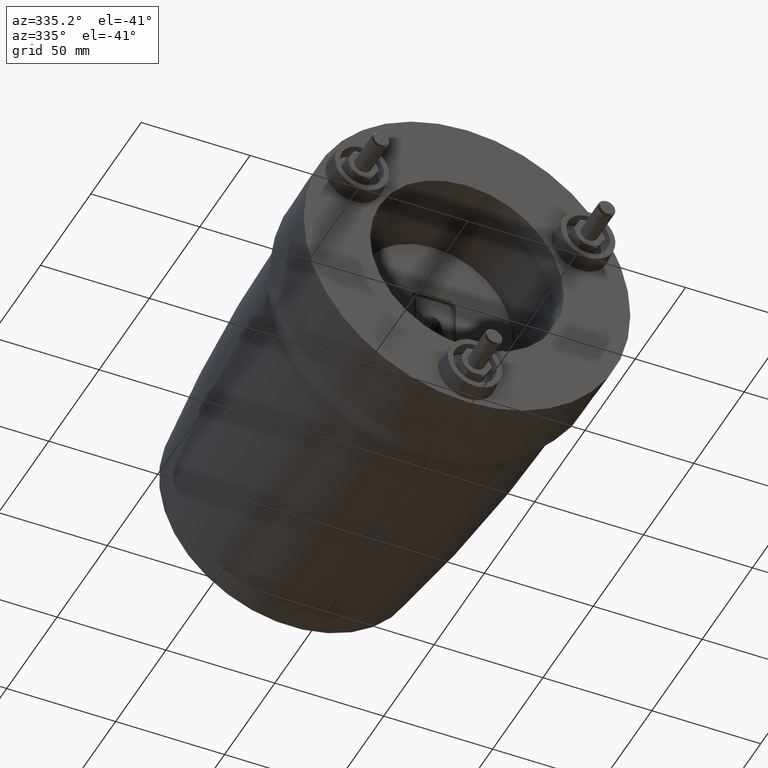
[diagram: clean part render]
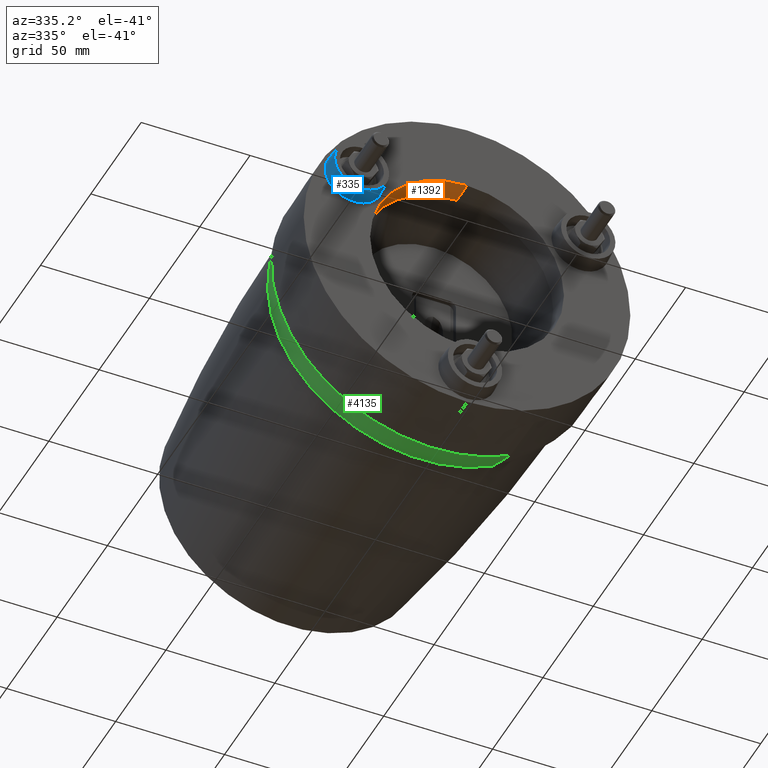
[diagram: same view with three faces highlighted in distinct colors, each labeled with its STEP entity id]
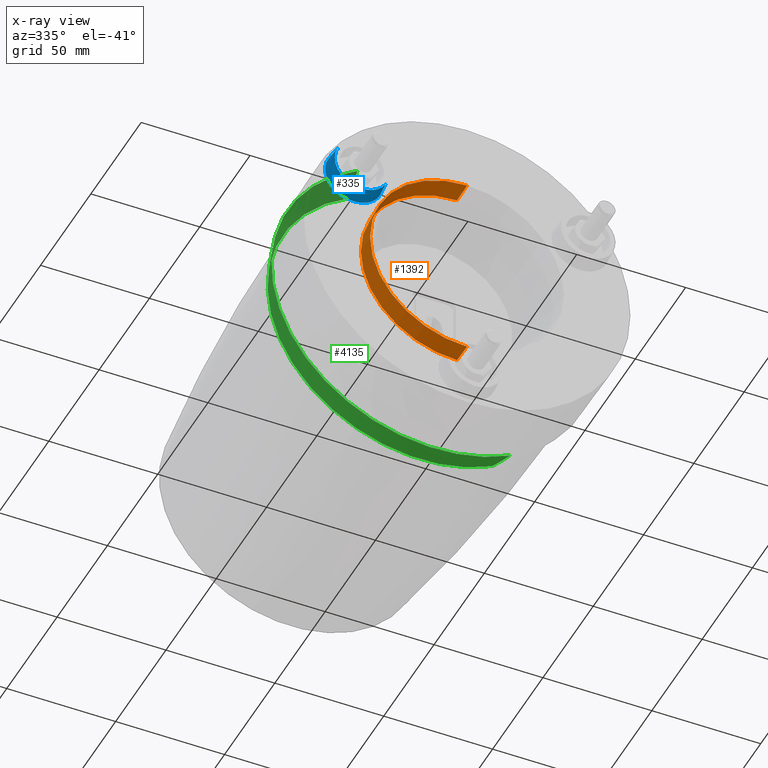
[diagram: x-ray of the same camera — body ghosted, the three highlighted faces saturated]
A machine part, auxiliary view with three faces highlighted in distinct colors.
The next image is the same camera in x-ray (body ghosted, the three faces saturated) — at least one of them is partly hidden behind the body in this view.
Their STEP definitions:

[orange] entity #1392 — the highlighted conical surface has half-angle 2 deg.
#219 = ORIENTED_EDGE ( 'NONE', *, *, #4466, .T. ) ;
#363 = FACE_OUTER_BOUND ( 'NONE', #492, .T. ) ;
#393 = CIRCLE ( 'NONE', #1015, 44.17000643500000479 ) ;
#492 = EDGE_LOOP ( 'NONE', ( #1029, #1118, #746, #219 ) ) ;
#600 = CARTESIAN_POINT ( 'NONE',  ( -3.108650705590759055E-13, 9.000000000000000000, 44.51764743816125502 ) ) ;
#664 = DIRECTION ( 'NONE',  ( 0.000000000000000000, -1.000000000000000000, 0.000000000000000000 ) ) ;
#686 = VERTEX_POINT ( 'NONE', #774 ) ;
#746 = ORIENTED_EDGE ( 'NONE', *, *, #2722, .T. ) ;
#774 = CARTESIAN_POINT ( 'NONE',  ( 3.042207359119388982E-13, 18.95513580500000117, -44.17000643499999768 ) ) ;
#781 = DIRECTION ( 'NONE',  ( -6.982962677686270655E-15, 0.000000000000000000, 1.000000000000000000 ) ) ;
#892 = DIRECTION ( 'NONE',  ( 2.394279275642955716E-16, -0.9993908270174995945, -0.03489949674820513187 ) ) ;
#954 = CONICAL_SURFACE ( 'NONE', #3658, 44.51533928099999571, 0.03490658508561861328 ) ;
#982 = EDGE_CURVE ( 'NONE', #686, #2831, #393, .T. ) ;
#1015 = AXIS2_PLACEMENT_3D ( 'NONE', #3885, #4273, #1328 ) ;
#1029 = ORIENTED_EDGE ( 'NONE', *, *, #1579, .F. ) ;
#1118 = ORIENTED_EDGE ( 'NONE', *, *, #982, .T. ) ;
#1282 = LINE ( 'NONE', #1986, #3145 ) ;
#1328 = DIRECTION ( 'NONE',  ( 6.982962677686270655E-15, 0.000000000000000000, -1.000000000000000000 ) ) ;
#1392 = ADVANCED_FACE ( 'NONE', ( #363 ), #954, .F. ) ;
#1463 = CIRCLE ( 'NONE', #2931, 44.51764743816124792 ) ;
#1579 = EDGE_CURVE ( 'NONE', #686, #2720, #4582, .T. ) ;
#1632 = CARTESIAN_POINT ( 'NONE',  ( 3.054132311150044224E-13, 9.000000000000000000, -44.51764743816125502 ) ) ;
#1830 = CARTESIAN_POINT ( 'NONE',  ( 0.000000000000000000, 9.066096972999998727, 0.000000000000000000 ) ) ;
#1851 = DIRECTION ( 'NONE',  ( 0.000000000000000000, -1.000000000000000000, 0.000000000000000000 ) ) ;
#1986 = CARTESIAN_POINT ( 'NONE',  ( -3.108489527837645559E-13, 9.066096972999998727, 44.51533928099999571 ) ) ;
#2720 = VERTEX_POINT ( 'NONE', #1632 ) ;
#2722 = EDGE_CURVE ( 'NONE', #2831, #2910, #1282, .T. ) ;
#2831 = VERTEX_POINT ( 'NONE', #3962 ) ;
#2910 = VERTEX_POINT ( 'NONE', #600 ) ;
#2931 = AXIS2_PLACEMENT_3D ( 'NONE', #3980, #664, #4004 ) ;
#3050 = VECTOR ( 'NONE', #892, 1000.000000000000114 ) ;
#3145 = VECTOR ( 'NONE', #4186, 1000.000000000000114 ) ;
#3658 = AXIS2_PLACEMENT_3D ( 'NONE', #1830, #1851, #781 ) ;
#3885 = CARTESIAN_POINT ( 'NONE',  ( 0.000000000000000000, 18.95513580500000117, 0.000000000000000000 ) ) ;
#3962 = CARTESIAN_POINT ( 'NONE',  ( -3.096512884839216798E-13, 18.95513580500000117, 44.17000643499999768 ) ) ;
#3980 = CARTESIAN_POINT ( 'NONE',  ( 0.000000000000000000, 9.000000000000000000, 0.000000000000000000 ) ) ;
#4004 = DIRECTION ( 'NONE',  ( -6.982962677686271444E-15, 0.000000000000000000, 1.000000000000000000 ) ) ;
#4186 = DIRECTION ( 'NONE',  ( -2.437018832627498086E-16, -0.9993908270174995945, 0.03489949674820513187 ) ) ;
#4209 = CARTESIAN_POINT ( 'NONE',  ( 3.053973960074210284E-13, 9.066096972999998727, -44.51533928099999571 ) ) ;
#4273 = DIRECTION ( 'NONE',  ( 0.000000000000000000, 1.000000000000000000, 0.000000000000000000 ) ) ;
#4466 = EDGE_CURVE ( 'NONE', #2910, #2720, #1463, .T. ) ;
#4582 = LINE ( 'NONE', #4209, #3050 ) ;

[blue] entity #335 — the highlighted toroidal blend (fillet) surface has major radius 86.689 mm and minor (blend) radius 100 mm.
#227 = CARTESIAN_POINT ( 'NONE',  ( -51.96152422706679630, 13.70966543281556049, 29.99999999999915090 ) ) ;
#335 = ADVANCED_FACE ( 'NONE', ( #2794 ), #2410, .T. ) ;
#487 = VERTEX_POINT ( 'NONE', #3059 ) ;
#506 = EDGE_LOOP ( 'NONE', ( #925, #605, #4191, #1168 ) ) ;
#559 = DIRECTION ( 'NONE',  ( -0.4999999999999860667, -0.000000000000000000, -0.8660254037844468122 ) ) ;
#605 = ORIENTED_EDGE ( 'NONE', *, *, #3816, .T. ) ;
#672 = DIRECTION ( 'NONE',  ( 0.000000000000000000, -1.000000000000000000, 0.000000000000000000 ) ) ;
#905 = AXIS2_PLACEMENT_3D ( 'NONE', #971, #3253, #2472 ) ;
#925 = ORIENTED_EDGE ( 'NONE', *, *, #2850, .T. ) ;
#971 = CARTESIAN_POINT ( 'NONE',  ( -51.96152422706679630, 1.000000000000000000, 29.99999999999915090 ) ) ;
#1168 = ORIENTED_EDGE ( 'NONE', *, *, #3932, .F. ) ;
#1391 = CIRCLE ( 'NONE', #1549, 100.0000001047823872 ) ;
#1484 = DIRECTION ( 'NONE',  ( 0.4999999999999859557, 0.000000000000000000, 0.8660254037844469233 ) ) ;
#1534 = CARTESIAN_POINT ( 'NONE',  ( 23.11338126973470253, 13.70966543281556049, -13.34451689796328111 ) ) ;
#1549 = AXIS2_PLACEMENT_3D ( 'NONE', #4586, #559, #2745 ) ;
#1684 = CIRCLE ( 'NONE', #4693, 13.19999999891632214 ) ;
#2077 = DIRECTION ( 'NONE',  ( -6.833759148348452042E-15, 0.000000000000000000, 1.000000000000000000 ) ) ;
#2270 = EDGE_CURVE ( 'NONE', #4207, #487, #3232, .T. ) ;
#2410 = TOROIDAL_SURFACE ( 'NONE', #2798, -86.68903379592730118, 100.0000001047824014 ) ;
#2455 = VERTEX_POINT ( 'NONE', #3484 ) ;
#2472 = DIRECTION ( 'NONE',  ( -0.8660254037844467012, 0.000000000000000000, 0.4999999999999860112 ) ) ;
#2480 = CARTESIAN_POINT ( 'NONE',  ( -62.78684177512658238, 1.000000000000000444, 36.25000000043441162 ) ) ;
#2745 = DIRECTION ( 'NONE',  ( -0.8660254037844467012, 0.000000000000000000, 0.4999999999999860667 ) ) ;
#2794 = FACE_OUTER_BOUND ( 'NONE', #506, .T. ) ;
#2798 = AXIS2_PLACEMENT_3D ( 'NONE', #227, #4658, #2822 ) ;
#2822 = DIRECTION ( 'NONE',  ( -0.8660254037844468122, 0.000000000000000000, 0.4999999999999858447 ) ) ;
#2850 = EDGE_CURVE ( 'NONE', #2455, #4411, #1684, .T. ) ;
#3059 = CARTESIAN_POINT ( 'NONE',  ( -41.13620667900699601, 1.000000000000000444, 23.74999999956389729 ) ) ;
#3232 = CIRCLE ( 'NONE', #905, 12.50000000087084473 ) ;
#3253 = DIRECTION ( 'NONE',  ( 0.000000000000000000, -1.000000000000000000, 0.000000000000000000 ) ) ;
#3463 = CIRCLE ( 'NONE', #4164, 100.0000001047824156 ) ;
#3484 = CARTESIAN_POINT ( 'NONE',  ( -63.39305955608301701, 9.000000000000000000, 36.59999999945713967 ) ) ;
#3494 = CARTESIAN_POINT ( 'NONE',  ( -40.52998889805056848, 9.000000000000000000, 23.40000000054117635 ) ) ;
#3816 = EDGE_CURVE ( 'NONE', #4411, #487, #1391, .T. ) ;
#3932 = EDGE_CURVE ( 'NONE', #2455, #4207, #3463, .T. ) ;
#4066 = DIRECTION ( 'NONE',  ( 0.8660254037844467012, 0.000000000000000000, -0.4999999999999858447 ) ) ;
#4164 = AXIS2_PLACEMENT_3D ( 'NONE', #1534, #1484, #4066 ) ;
#4191 = ORIENTED_EDGE ( 'NONE', *, *, #2270, .F. ) ;
#4207 = VERTEX_POINT ( 'NONE', #2480 ) ;
#4411 = VERTEX_POINT ( 'NONE', #3494 ) ;
#4586 = CARTESIAN_POINT ( 'NONE',  ( -127.0364297238682809, 13.70966543281556049, 73.34451689796159712 ) ) ;
#4658 = DIRECTION ( 'NONE',  ( 0.000000000000000000, -1.000000000000000000, 0.000000000000000000 ) ) ;
#4693 = AXIS2_PLACEMENT_3D ( 'NONE', #4719, #672, #2077 ) ;
#4719 = CARTESIAN_POINT ( 'NONE',  ( -51.96152422706679630, 9.000000000000000000, 29.99999999999915090 ) ) ;

[green] entity #4135 — the highlighted toroidal blend (fillet) surface has major radius 212.318 mm and minor (blend) radius 300 mm.
#26 = CARTESIAN_POINT ( 'NONE',  ( -32.95647398094602920, 55.32575010273159677, 61.94328763096225288 ) ) ;
#250 = ORIENTED_EDGE ( 'NONE', *, *, #1412, .T. ) ;
#276 = CARTESIAN_POINT ( 'NONE',  ( 32.95647398094607183, 55.32575010273160387, -61.94328763096225998 ) ) ;
#277 = DIRECTION ( 'NONE',  ( -0.4697009179250243305, -9.303826183378726515E-17, 0.8828256043525185559 ) ) ;
#283 = CIRCLE ( 'NONE', #1691, 300.0000000000000000 ) ;
#472 = CARTESIAN_POINT ( 'NONE',  ( -99.72599162257056093, -45.68625626515981253, 187.4398270558704098 ) ) ;
#793 = EDGE_CURVE ( 'NONE', #1415, #4169, #2796, .T. ) ;
#834 = DIRECTION ( 'NONE',  ( 0.4697009179250239419, 0.000000000000000000, -0.8828256043525186669 ) ) ;
#948 = AXIS2_PLACEMENT_3D ( 'NONE', #2241, #1877, #3344 ) ;
#1035 = EDGE_CURVE ( 'NONE', #3033, #1681, #1110, .T. ) ;
#1110 = CIRCLE ( 'NONE', #2799, 74.58107844172275236 ) ;
#1234 = AXIS2_PLACEMENT_3D ( 'NONE', #1429, #1449, #2122 ) ;
#1263 = CIRCLE ( 'NONE', #948, 300.0000000000000000 ) ;
#1412 = EDGE_CURVE ( 'NONE', #1681, #1415, #1263, .T. ) ;
#1415 = VERTEX_POINT ( 'NONE', #26 ) ;
#1429 = CARTESIAN_POINT ( 'NONE',  ( 1.352387018892753981E-14, -45.68625626515979832, 9.651393083216828307E-15 ) ) ;
#1449 = DIRECTION ( 'NONE',  ( -3.646188862319169167E-17, 1.000000000000000000, 6.853188408020449877E-17 ) ) ;
#1555 = CARTESIAN_POINT ( 'NONE',  ( 1.352387018892753981E-14, 55.32575010273160387, 9.651393083216828307E-15 ) ) ;
#1681 = VERTEX_POINT ( 'NONE', #3168 ) ;
#1691 = AXIS2_PLACEMENT_3D ( 'NONE', #472, #3020, #834 ) ;
#1876 = AXIS2_PLACEMENT_3D ( 'NONE', #1555, #3651, #4061 ) ;
#1877 = DIRECTION ( 'NONE',  ( -0.8828256043525187780, -4.930380657631322689E-32, -0.4697009179250238864 ) ) ;
#2120 = ORIENTED_EDGE ( 'NONE', *, *, #1035, .T. ) ;
#2122 = DIRECTION ( 'NONE',  ( -0.4697009179250238309, -7.762788453611641143E-17, 0.8828256043525187780 ) ) ;
#2208 = ORIENTED_EDGE ( 'NONE', *, *, #3233, .F. ) ;
#2241 = CARTESIAN_POINT ( 'NONE',  ( 99.72599162257056093, -45.68625626515978411, -187.4398270558704382 ) ) ;
#2796 = CIRCLE ( 'NONE', #1876, 70.16480641881085489 ) ;
#2799 = AXIS2_PLACEMENT_3D ( 'NONE', #4643, #3591, #277 ) ;
#2875 = FACE_OUTER_BOUND ( 'NONE', #4317, .T. ) ;
#3020 = DIRECTION ( 'NONE',  ( 0.8828256043525186669, 3.697785493223491743E-32, 0.4697009179250239974 ) ) ;
#3033 = VERTEX_POINT ( 'NONE', #4108 ) ;
#3168 = CARTESIAN_POINT ( 'NONE',  ( -35.03080100391538565, 41.99999999999424460, 65.84208564857654267 ) ) ;
#3184 = ORIENTED_EDGE ( 'NONE', *, *, #793, .T. ) ;
#3233 = EDGE_CURVE ( 'NONE', #3033, #4169, #283, .T. ) ;
#3344 = DIRECTION ( 'NONE',  ( -0.4697009179250238864, 0.000000000000000000, 0.8828256043525188890 ) ) ;
#3591 = DIRECTION ( 'NONE',  ( -4.370015698547859813E-17, 1.000000000000000000, 8.213655973132098191E-17 ) ) ;
#3651 = DIRECTION ( 'NONE',  ( 0.000000000000000000, -1.000000000000000000, 0.000000000000000000 ) ) ;
#4009 = TOROIDAL_SURFACE ( 'NONE', #1234, -212.3180684064350032, 300.0000000000000000 ) ;
#4061 = DIRECTION ( 'NONE',  ( 0.8828256043525186669, 0.000000000000000000, 0.4697009179250242750 ) ) ;
#4108 = CARTESIAN_POINT ( 'NONE',  ( 35.03080100391540697, 41.99999999999425881, -65.84208564857650003 ) ) ;
#4135 = ADVANCED_FACE ( 'NONE', ( #2875 ), #4009, .T. ) ;
#4169 = VERTEX_POINT ( 'NONE', #276 ) ;
#4317 = EDGE_LOOP ( 'NONE', ( #2208, #2120, #250, #3184 ) ) ;
#4643 = CARTESIAN_POINT ( 'NONE',  ( 1.032666367920285900E-14, 41.99999999999425171, 1.566069743300744890E-14 ) ) ;